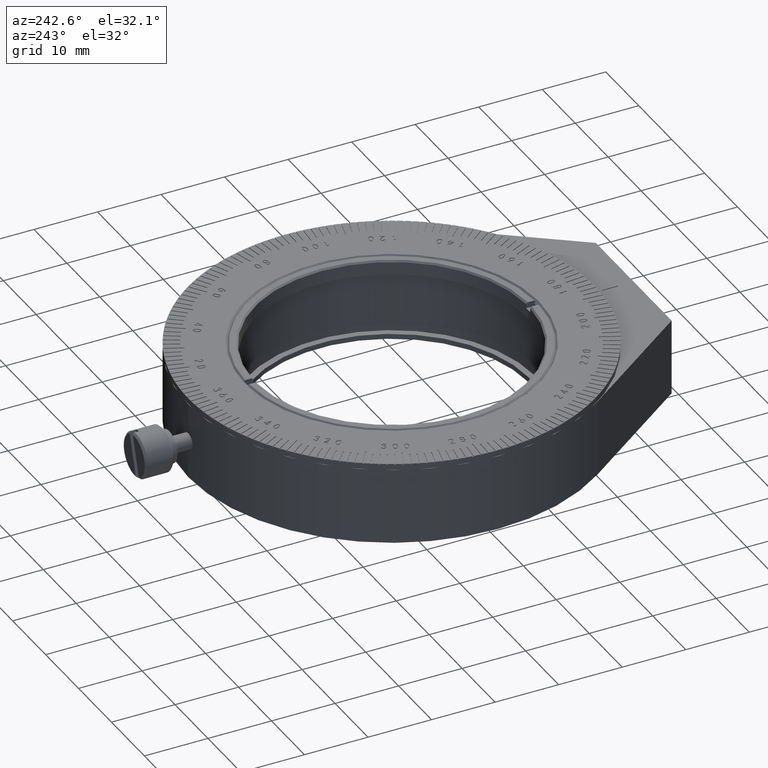
[diagram: clean part render]
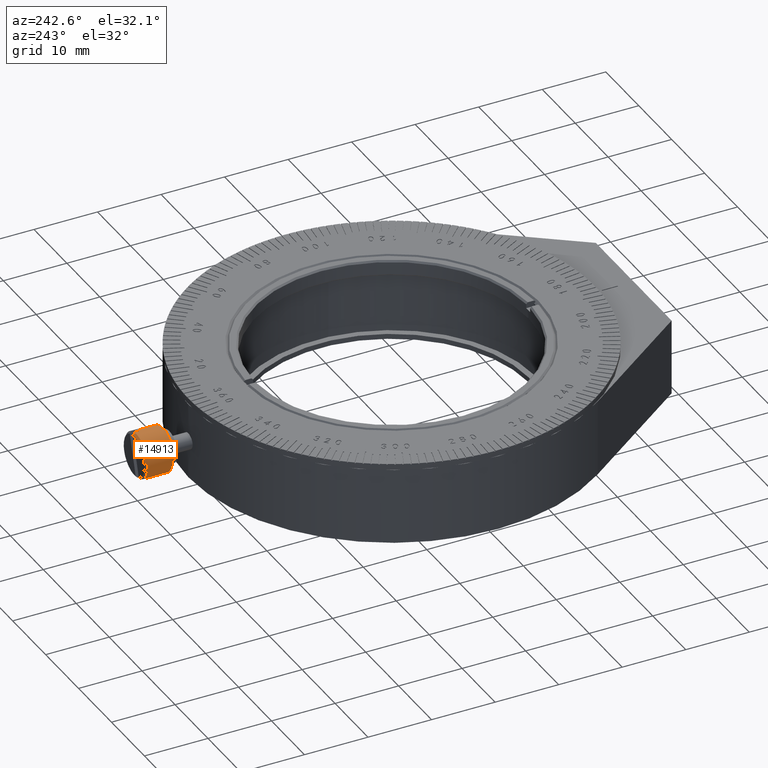
[diagram: same view with one face highlighted and labeled with its STEP entity id]
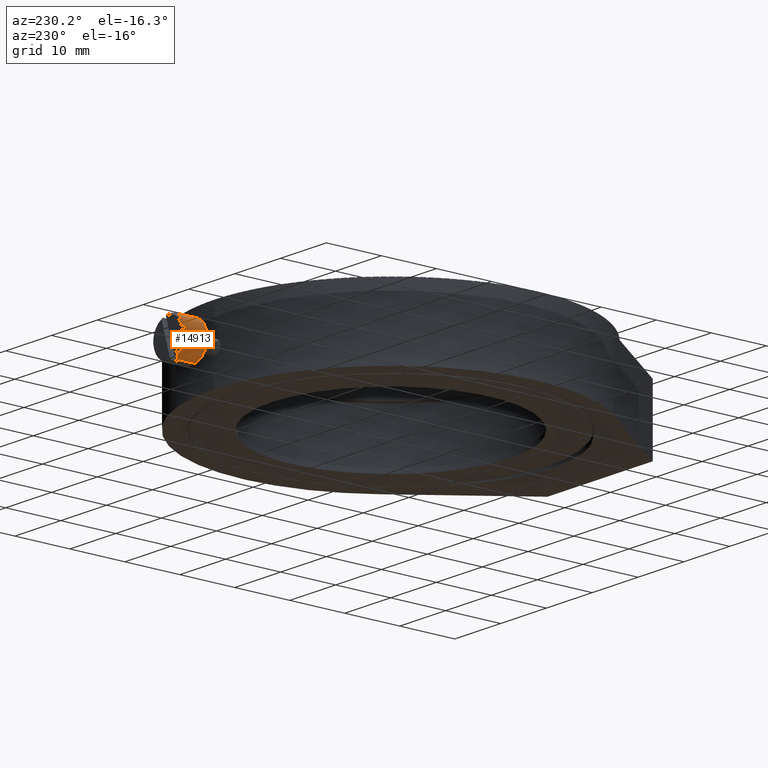
[diagram: same view with one face highlighted and labeled with its STEP entity id]
A machine part, auxiliary view. The second image highlights one B-rep face of the part: STEP entity #14913.
A second angle (auxiliary view) of the same face is appended — the face is thin or edge-on in the first view.
In plain terms, the highlighted cylindrical surface (edge-blend (fillet) strip) has radius 3.5 mm, axis along (-0, -1, 0).
Its self-contained STEP definition (entity closure, byte-faithful):
#762 = CARTESIAN_POINT ( 'NONE',  ( -0.5000000000000001110, 5.500000000000000000, 3.464101615137754830 ) ) ;
#1896 = DIRECTION ( 'NONE',  ( -0.000000000000000000, -1.000000000000000000, -0.000000000000000000 ) ) ;
#1931 = VECTOR ( 'NONE', #10871, 1000.000000000000000 ) ;
#3103 = VECTOR ( 'NONE', #20288, 1000.000000000000000 ) ;
#3656 = CARTESIAN_POINT ( 'NONE',  ( 4.286263797015736595E-16, 1.299999999999999156, 3.500000000000000000 ) ) ;
#5299 = CARTESIAN_POINT ( 'NONE',  ( 4.286263797015736595E-16, 4.500000000000000000, 3.500000000000000000 ) ) ;
#5574 = LINE ( 'NONE', #762, #3103 ) ;
#6675 = DIRECTION ( 'NONE',  ( -0.000000000000000000, -1.000000000000000000, -0.000000000000000000 ) ) ;
#6721 = CARTESIAN_POINT ( 'NONE',  ( 4.286263797015736595E-16, 5.500000000000000000, 3.500000000000000000 ) ) ;
#8107 = DIRECTION ( 'NONE',  ( -0.000000000000000000, -1.000000000000000000, -0.000000000000000000 ) ) ;
#8787 = CARTESIAN_POINT ( 'NONE',  ( 0.000000000000000000, 1.299999999999999156, -3.500000000000000000 ) ) ;
#10871 = DIRECTION ( 'NONE',  ( -0.000000000000000000, -1.000000000000000000, -0.000000000000000000 ) ) ;
#11943 = EDGE_CURVE ( 'NONE', #14908, #19782, #47487, .T. ) ;
#13601 = EDGE_CURVE ( 'NONE', #58762, #47215, #5574, .T. ) ;
#13898 = CARTESIAN_POINT ( 'NONE',  ( 0.000000000000000000, 4.500000000000000000, 0.000000000000000000 ) ) ;
#14427 = CARTESIAN_POINT ( 'NONE',  ( 0.000000000000000000, 4.500000000000000000, -3.500000000000000000 ) ) ;
#14908 = VERTEX_POINT ( 'NONE', #25257 ) ;
#14913 = ADVANCED_FACE ( 'NONE', ( #35515 ), #55987, .T. ) ;
#15880 = CIRCLE ( 'NONE', #26121, 3.500000000000000000 ) ;
#17030 = DIRECTION ( 'NONE',  ( 0.000000000000000000, 0.000000000000000000, -1.000000000000000000 ) ) ;
#18359 = ORIENTED_EDGE ( 'NONE', *, *, #26643, .T. ) ;
#19020 = DIRECTION ( 'NONE',  ( 0.000000000000000000, 1.000000000000000000, 0.000000000000000000 ) ) ;
#19782 = VERTEX_POINT ( 'NONE', #45538 ) ;
#20288 = DIRECTION ( 'NONE',  ( 0.000000000000000000, 1.000000000000000000, 0.000000000000000000 ) ) ;
#21320 = AXIS2_PLACEMENT_3D ( 'NONE', #27260, #46499, #17030 ) ;
#22465 = AXIS2_PLACEMENT_3D ( 'NONE', #38228, #32800, #23817 ) ;
#23817 = DIRECTION ( 'NONE',  ( 0.000000000000000000, 0.000000000000000000, 1.000000000000000000 ) ) ;
#23867 = ORIENTED_EDGE ( 'NONE', *, *, #13601, .T. ) ;
#23899 = ORIENTED_EDGE ( 'NONE', *, *, #27182, .F. ) ;
#23941 = ORIENTED_EDGE ( 'NONE', *, *, #11943, .T. ) ;
#24044 = CARTESIAN_POINT ( 'NONE',  ( -0.5000000000000001110, 5.200000000000000178, 3.464101615137756163 ) ) ;
#25257 = CARTESIAN_POINT ( 'NONE',  ( -0.5000000000000001110, 5.200000000000001066, -3.464101615137754830 ) ) ;
#26096 = VERTEX_POINT ( 'NONE', #5299 ) ;
#26121 = AXIS2_PLACEMENT_3D ( 'NONE', #33457, #27700, #42752 ) ;
#26642 = CIRCLE ( 'NONE', #56307, 3.500000000000000000 ) ;
#26643 = EDGE_CURVE ( 'NONE', #56946, #55136, #43825, .T. ) ;
#27182 = EDGE_CURVE ( 'NONE', #26096, #55136, #30082, .T. ) ;
#27260 = CARTESIAN_POINT ( 'NONE',  ( 0.000000000000000000, 1.299999999999999156, 0.000000000000000000 ) ) ;
#27700 = DIRECTION ( 'NONE',  ( 0.000000000000000000, -1.000000000000000000, 0.000000000000000000 ) ) ;
#30063 = CARTESIAN_POINT ( 'NONE',  ( 0.000000000000000000, 5.500000000000000000, 0.000000000000000000 ) ) ;
#30082 = LINE ( 'NONE', #6721, #1931 ) ;
#30646 = EDGE_LOOP ( 'NONE', ( #23899, #58299, #23867, #50765, #23941, #59807, #52099, #18359 ) ) ;
#32800 = DIRECTION ( 'NONE',  ( 0.000000000000000000, 1.000000000000000000, 0.000000000000000000 ) ) ;
#33457 = CARTESIAN_POINT ( 'NONE',  ( 0.000000000000000000, 5.200000000000001066, 0.000000000000000000 ) ) ;
#35515 = FACE_OUTER_BOUND ( 'NONE', #30646, .T. ) ;
#37669 = CARTESIAN_POINT ( 'NONE',  ( -0.5000000000000001110, 4.500000000000000000, 3.464101615137754830 ) ) ;
#37682 = CIRCLE ( 'NONE', #22465, 3.500000000000000000 ) ;
#38228 = CARTESIAN_POINT ( 'NONE',  ( 0.000000000000000000, 4.500000000000000000, 0.000000000000000000 ) ) ;
#39479 = EDGE_CURVE ( 'NONE', #58762, #26096, #26642, .T. ) ;
#40004 = DIRECTION ( 'NONE',  ( 0.000000000000000000, 0.000000000000000000, -1.000000000000000000 ) ) ;
#42752 = DIRECTION ( 'NONE',  ( 0.000000000000000000, 0.000000000000000000, 1.000000000000000000 ) ) ;
#43825 = CIRCLE ( 'NONE', #21320, 3.500000000000000000 ) ;
#45099 = EDGE_CURVE ( 'NONE', #62157, #56946, #55335, .T. ) ;
#45417 = CARTESIAN_POINT ( 'NONE',  ( 0.000000000000000000, 5.500000000000000000, -3.500000000000000000 ) ) ;
#45436 = AXIS2_PLACEMENT_3D ( 'NONE', #30063, #1896, #40004 ) ;
#45538 = CARTESIAN_POINT ( 'NONE',  ( -0.5000000000000001110, 4.500000000000000000, -3.464101615137754830 ) ) ;
#46499 = DIRECTION ( 'NONE',  ( 0.000000000000000000, 1.000000000000000000, 0.000000000000000000 ) ) ;
#47215 = VERTEX_POINT ( 'NONE', #24044 ) ;
#47254 = VECTOR ( 'NONE', #6675, 1000.000000000000000 ) ;
#47487 = LINE ( 'NONE', #51973, #63366 ) ;
#50765 = ORIENTED_EDGE ( 'NONE', *, *, #52758, .T. ) ;
#51973 = CARTESIAN_POINT ( 'NONE',  ( -0.5000000000000001110, 5.500000000000000000, -3.464101615137754830 ) ) ;
#52099 = ORIENTED_EDGE ( 'NONE', *, *, #45099, .T. ) ;
#52758 = EDGE_CURVE ( 'NONE', #47215, #14908, #15880, .T. ) ;
#53288 = DIRECTION ( 'NONE',  ( 0.000000000000000000, 0.000000000000000000, 1.000000000000000000 ) ) ;
#55136 = VERTEX_POINT ( 'NONE', #3656 ) ;
#55335 = LINE ( 'NONE', #45417, #47254 ) ;
#55987 = CYLINDRICAL_SURFACE ( 'NONE', #45436, 3.500000000000000000 ) ;
#56307 = AXIS2_PLACEMENT_3D ( 'NONE', #13898, #19020, #53288 ) ;
#56946 = VERTEX_POINT ( 'NONE', #8787 ) ;
#58299 = ORIENTED_EDGE ( 'NONE', *, *, #39479, .F. ) ;
#58762 = VERTEX_POINT ( 'NONE', #37669 ) ;
#59807 = ORIENTED_EDGE ( 'NONE', *, *, #61686, .F. ) ;
#61686 = EDGE_CURVE ( 'NONE', #62157, #19782, #37682, .T. ) ;
#62157 = VERTEX_POINT ( 'NONE', #14427 ) ;
#63366 = VECTOR ( 'NONE', #8107, 1000.000000000000000 ) ;